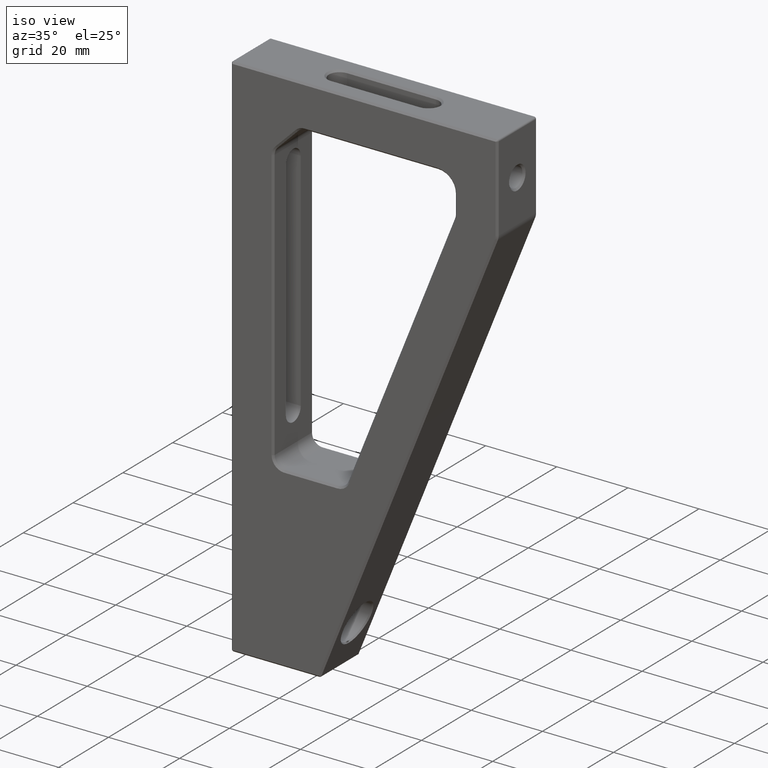
[diagram: clean part render]
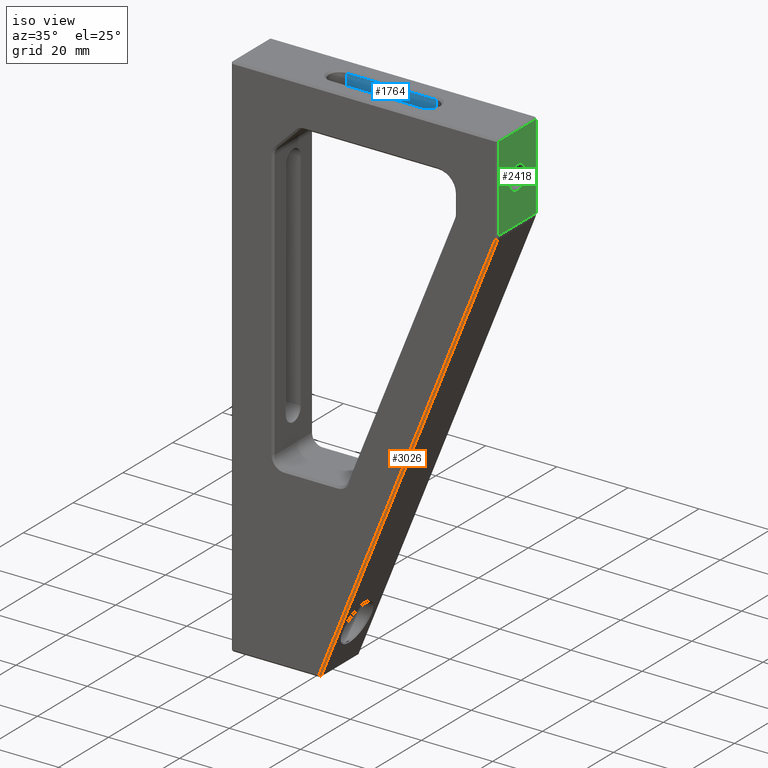
[diagram: same view with three faces highlighted in distinct colors, each labeled with its STEP entity id]
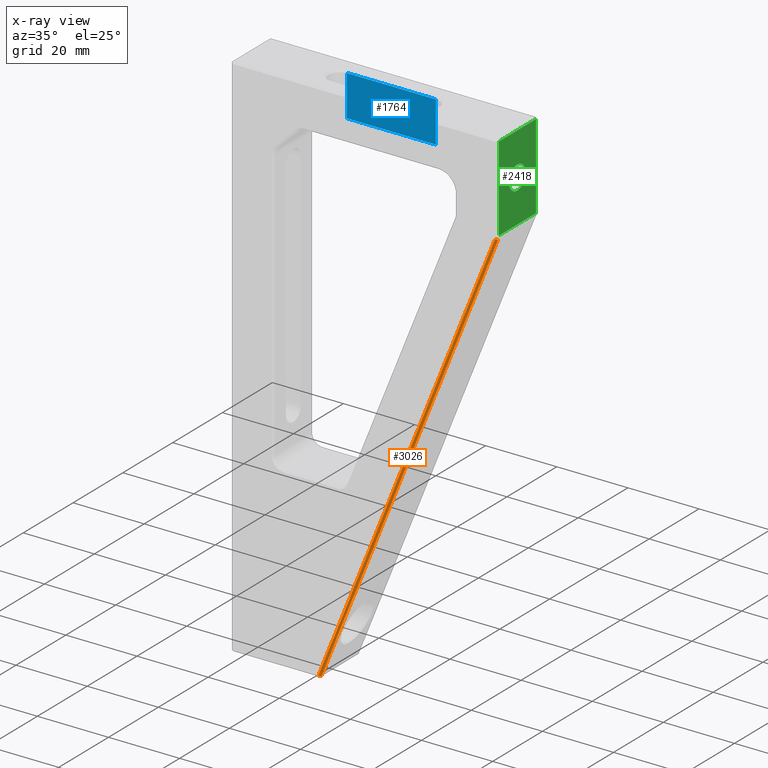
[diagram: x-ray of the same camera — body ghosted, the three highlighted faces saturated]
A machine part, iso view with three faces highlighted in distinct colors.
The next image is the same camera in x-ray (body ghosted, the three faces saturated) — at least one of them is partly hidden behind the body in this view.
Their STEP definitions:

[orange] entity #3026 — the highlighted planar face has unit normal (-0.6565, 0.7071, 0.2626).
#43 = CARTESIAN_POINT ( 'NONE',  ( 34.19837979459430244, -9.583758937690465274, 199.4635751816394986 ) ) ;
#121 = CARTESIAN_POINT ( 'NONE',  ( 33.73414144912245405, -10.08375893772192988, 199.6492705198282067 ) ) ;
#156 = VECTOR ( 'NONE', #933, 1000.000000000000114 ) ;
#159 = EDGE_CURVE ( 'NONE', #1185, #1674, #3085, .T. ) ;
#410 = PLANE ( 'NONE',  #2543 ) ;
#569 = DIRECTION ( 'NONE',  ( -0.6565321642986167161, -0.7071067811865509034, 0.2626128657194261029 ) ) ;
#663 = VECTOR ( 'NONE', #1889, 1000.000000000000114 ) ;
#871 = CARTESIAN_POINT ( 'NONE',  ( -15.46132841333233543, -9.583758937690465274, 75.31430466182291639 ) ) ;
#874 = CARTESIAN_POINT ( 'NONE',  ( 11.53491827304757145, -10.08375893769047948, 144.1512125795563293 ) ) ;
#933 = DIRECTION ( 'NONE',  ( 0.3713906763541038880, 0.000000000000000000, 0.9284766908852593037 ) ) ;
#1142 = DIRECTION ( 'NONE',  ( -0.7328281087929350290, -0.6804138174397769134, 0.000000000000000000 ) ) ;
#1185 = VERTEX_POINT ( 'NONE', #2910 ) ;
#1411 = LINE ( 'NONE', #2198, #156 ) ;
#1481 = EDGE_CURVE ( 'NONE', #2593, #1185, #1840, .T. ) ;
#1582 = VECTOR ( 'NONE', #569, 1000.000000000000114 ) ;
#1674 = VERTEX_POINT ( 'NONE', #121 ) ;
#1709 = ORIENTED_EDGE ( 'NONE', *, *, #159, .F. ) ;
#1738 = ORIENTED_EDGE ( 'NONE', *, *, #1944, .F. ) ;
#1818 = EDGE_CURVE ( 'NONE', #2593, #3219, #1411, .T. ) ;
#1840 = LINE ( 'NONE', #871, #1582 ) ;
#1889 = DIRECTION ( 'NONE',  ( 0.3713906763541037215, -6.486748999136609268E-17, 0.9284766908852593037 ) ) ;
#1923 = CARTESIAN_POINT ( 'NONE',  ( 33.73414144915165025, -10.08375893769048481, 199.6492705198165254 ) ) ;
#1943 = FACE_OUTER_BOUND ( 'NONE', #2404, .T. ) ;
#1944 = EDGE_CURVE ( 'NONE', #1674, #3219, #2899, .T. ) ;
#1974 = ORIENTED_EDGE ( 'NONE', *, *, #1481, .F. ) ;
#2198 = CARTESIAN_POINT ( 'NONE',  ( -15.58705027806151655, -9.583758937690459945, 74.99999999999998579 ) ) ;
#2404 = EDGE_LOOP ( 'NONE', ( #3087, #1738, #1709, #1974 ) ) ;
#2509 = CARTESIAN_POINT ( 'NONE',  ( -15.46132841333233898, -9.583758937690461721, 75.31430466182293060 ) ) ;
#2543 = AXIS2_PLACEMENT_3D ( 'NONE', #874, #3177, #1142 ) ;
#2593 = VERTEX_POINT ( 'NONE', #2509 ) ;
#2615 = CARTESIAN_POINT ( 'NONE',  ( -15.92556675877497518, -10.08375893769047593, 75.49999999999995737 ) ) ;
#2818 = VECTOR ( 'NONE', #2919, 1000.000000000000114 ) ;
#2899 = LINE ( 'NONE', #1923, #2818 ) ;
#2910 = CARTESIAN_POINT ( 'NONE',  ( -15.92556675877765393, -10.08375893769047771, 75.49999999999998579 ) ) ;
#2919 = DIRECTION ( 'NONE',  ( 0.6565321642986210460, 0.7071067811865532349, -0.2626128657194091165 ) ) ;
#3026 = ADVANCED_FACE ( 'NONE', ( #1943 ), #410, .F. ) ;
#3085 = LINE ( 'NONE', #2615, #663 ) ;
#3087 = ORIENTED_EDGE ( 'NONE', *, *, #1818, .T. ) ;
#3177 = DIRECTION ( 'NONE',  ( -0.6565321642986174933, 0.7071067811865424657, 0.2626128657194470306 ) ) ;
#3219 = VERTEX_POINT ( 'NONE', #43 ) ;

[blue] entity #1764 — the highlighted planar face has unit normal (-0, 1, 0).
#37 = LINE ( 'NONE', #1814, #3006 ) ;
#57 = FACE_OUTER_BOUND ( 'NONE', #2285, .T. ) ;
#264 = LINE ( 'NONE', #776, #3000 ) ;
#296 = DIRECTION ( 'NONE',  ( -0.000000000000000000, -0.000000000000000000, -1.000000000000000000 ) ) ;
#359 = EDGE_CURVE ( 'NONE', #2829, #2154, #264, .T. ) ;
#645 = AXIS2_PLACEMENT_3D ( 'NONE', #2324, #2810, #2580 ) ;
#776 = CARTESIAN_POINT ( 'NONE',  ( -15.58705027806149523, 0.9162410623095279538, 224.4999999999999716 ) ) ;
#1267 = EDGE_CURVE ( 'NONE', #3008, #2154, #2784, .T. ) ;
#1400 = CARTESIAN_POINT ( 'NONE',  ( 9.412949721938485226, 0.9162410622810179817, 224.4999999999462261 ) ) ;
#1487 = LINE ( 'NONE', #2966, #2097 ) ;
#1616 = VERTEX_POINT ( 'NONE', #1847 ) ;
#1707 = DIRECTION ( 'NONE',  ( 1.000000000000000000, 0.000000000000000000, -0.000000000000000000 ) ) ;
#1764 = ADVANCED_FACE ( 'NONE', ( #57 ), #2082, .F. ) ;
#1814 = CARTESIAN_POINT ( 'NONE',  ( 9.412949721938485226, 0.9162410623095302853, 74.99899999999998101 ) ) ;
#1847 = CARTESIAN_POINT ( 'NONE',  ( 9.412949721938485226, 0.9162410623095279538, 212.9999999999999716 ) ) ;
#2026 = CARTESIAN_POINT ( 'NONE',  ( -15.58705027806149523, 0.9162410623095255113, 74.99899999999998101 ) ) ;
#2063 = DIRECTION ( 'NONE',  ( -1.000000000000000000, -9.540979117872201128E-17, 9.540979117872451345E-17 ) ) ;
#2073 = CARTESIAN_POINT ( 'NONE',  ( -15.58705027806149523, 0.9162410623095255113, 212.9999999999999716 ) ) ;
#2082 = PLANE ( 'NONE',  #645 ) ;
#2097 = VECTOR ( 'NONE', #1707, 1000.000000000000000 ) ;
#2154 = VERTEX_POINT ( 'NONE', #2778 ) ;
#2213 = ORIENTED_EDGE ( 'NONE', *, *, #1267, .F. ) ;
#2277 = EDGE_CURVE ( 'NONE', #2829, #1616, #37, .T. ) ;
#2279 = ORIENTED_EDGE ( 'NONE', *, *, #2277, .F. ) ;
#2285 = EDGE_LOOP ( 'NONE', ( #2609, #2213, #2667, #2279 ) ) ;
#2324 = CARTESIAN_POINT ( 'NONE',  ( -15.58705027806149523, 0.9162410623095255113, 74.99899999999998101 ) ) ;
#2580 = DIRECTION ( 'NONE',  ( -1.000000000000000000, -1.908195823574489776E-16, 0.000000000000000000 ) ) ;
#2609 = ORIENTED_EDGE ( 'NONE', *, *, #359, .T. ) ;
#2633 = EDGE_CURVE ( 'NONE', #3008, #1616, #1487, .T. ) ;
#2667 = ORIENTED_EDGE ( 'NONE', *, *, #2633, .T. ) ;
#2778 = CARTESIAN_POINT ( 'NONE',  ( -15.58705027806149523, 0.9162410623009052957, 224.4999999999462261 ) ) ;
#2784 = LINE ( 'NONE', #2026, #2848 ) ;
#2810 = DIRECTION ( 'NONE',  ( -1.908195823574489776E-16, 1.000000000000000000, 0.000000000000000000 ) ) ;
#2829 = VERTEX_POINT ( 'NONE', #1400 ) ;
#2848 = VECTOR ( 'NONE', #3227, 1000.000000000000000 ) ;
#2966 = CARTESIAN_POINT ( 'NONE',  ( -21.08705027806149701, 0.9162410623095255113, 212.9999999999999716 ) ) ;
#3000 = VECTOR ( 'NONE', #2063, 1000.000000000000000 ) ;
#3006 = VECTOR ( 'NONE', #296, 1000.000000000000000 ) ;
#3008 = VERTEX_POINT ( 'NONE', #2073 ) ;
#3227 = DIRECTION ( 'NONE',  ( 0.000000000000000000, 0.000000000000000000, 1.000000000000000000 ) ) ;

[green] entity #2418 — the highlighted planar face has unit normal (-1, 0, 0).
#24 = VERTEX_POINT ( 'NONE', #1995 ) ;
#71 = ORIENTED_EDGE ( 'NONE', *, *, #2104, .F. ) ;
#113 = EDGE_CURVE ( 'NONE', #1168, #24, #369, .T. ) ;
#189 = PLANE ( 'NONE',  #1328 ) ;
#267 = AXIS2_PLACEMENT_3D ( 'NONE', #447, #2413, #2695 ) ;
#327 = ORIENTED_EDGE ( 'NONE', *, *, #1595, .F. ) ;
#369 = LINE ( 'NONE', #581, #2750 ) ;
#447 = CARTESIAN_POINT ( 'NONE',  ( 34.41294972194555868, -2.083758937690479929, 212.5000000000000000 ) ) ;
#526 = DIRECTION ( 'NONE',  ( 0.000000000000000000, 1.000000000000000000, -0.000000000000000000 ) ) ;
#551 = CARTESIAN_POINT ( 'NONE',  ( 34.41294972193851009, 5.416241062309553378, 224.5000000000000000 ) ) ;
#581 = CARTESIAN_POINT ( 'NONE',  ( 34.41294972193849588, 5.916241062309521404, 200.5777472107017161 ) ) ;
#686 = DIRECTION ( 'NONE',  ( 1.850371707708594316E-16, 0.000000000000000000, 1.000000000000000000 ) ) ;
#850 = VECTOR ( 'NONE', #1628, 1000.000000000000000 ) ;
#878 = ORIENTED_EDGE ( 'NONE', *, *, #113, .F. ) ;
#880 = FACE_BOUND ( 'NONE', #2041, .T. ) ;
#911 = CARTESIAN_POINT ( 'NONE',  ( 34.41294972194594237, 5.416241062330086287, 200.5777472107016877 ) ) ;
#1029 = LINE ( 'NONE', #3220, #3254 ) ;
#1168 = VERTEX_POINT ( 'NONE', #911 ) ;
#1183 = EDGE_CURVE ( 'NONE', #1604, #1604, #2683, .T. ) ;
#1323 = CARTESIAN_POINT ( 'NONE',  ( 34.41294972193850299, -9.583758937690465274, 224.4999999999999716 ) ) ;
#1328 = AXIS2_PLACEMENT_3D ( 'NONE', #3133, #3149, #686 ) ;
#1506 = EDGE_LOOP ( 'NONE', ( #327, #878, #71, #2259 ) ) ;
#1595 = EDGE_CURVE ( 'NONE', #24, #1627, #2619, .T. ) ;
#1604 = VERTEX_POINT ( 'NONE', #2183 ) ;
#1627 = VERTEX_POINT ( 'NONE', #1323 ) ;
#1628 = DIRECTION ( 'NONE',  ( 1.850371707708594316E-16, 0.000000000000000000, 1.000000000000000000 ) ) ;
#1995 = CARTESIAN_POINT ( 'NONE',  ( 34.41294972193849588, -9.583758937690465274, 200.5777472107017161 ) ) ;
#2041 = EDGE_LOOP ( 'NONE', ( #2888 ) ) ;
#2104 = EDGE_CURVE ( 'NONE', #3073, #1168, #1029, .T. ) ;
#2183 = CARTESIAN_POINT ( 'NONE',  ( 34.41294972194555868, -2.083758937690479929, 209.2000000000325599 ) ) ;
#2259 = ORIENTED_EDGE ( 'NONE', *, *, #2681, .F. ) ;
#2377 = CARTESIAN_POINT ( 'NONE',  ( 34.41294972193847457, -9.583758937690465274, 74.99999999999998579 ) ) ;
#2413 = DIRECTION ( 'NONE',  ( 1.000000000000000000, 0.000000000000000000, 0.000000000000000000 ) ) ;
#2417 = FACE_OUTER_BOUND ( 'NONE', #1506, .T. ) ;
#2418 = ADVANCED_FACE ( 'NONE', ( #2417, #880 ), #189, .F. ) ;
#2619 = LINE ( 'NONE', #2377, #850 ) ;
#2651 = DIRECTION ( 'NONE',  ( -0.000000000000000000, -1.000000000000000000, 0.000000000000000000 ) ) ;
#2681 = EDGE_CURVE ( 'NONE', #1627, #3073, #3141, .T. ) ;
#2683 = CIRCLE ( 'NONE', #267, 3.299999999967440090 ) ;
#2695 = DIRECTION ( 'NONE',  ( 0.000000000000000000, 0.000000000000000000, -1.000000000000000000 ) ) ;
#2750 = VECTOR ( 'NONE', #2651, 1000.000000000000000 ) ;
#2773 = CARTESIAN_POINT ( 'NONE',  ( 34.41294972193850299, 5.916241062309521404, 224.4999999999999716 ) ) ;
#2888 = ORIENTED_EDGE ( 'NONE', *, *, #1183, .F. ) ;
#2971 = DIRECTION ( 'NONE',  ( -9.251858538542971581E-17, -9.251858538542971581E-17, -1.000000000000000000 ) ) ;
#2989 = VECTOR ( 'NONE', #526, 1000.000000000000000 ) ;
#3073 = VERTEX_POINT ( 'NONE', #551 ) ;
#3133 = CARTESIAN_POINT ( 'NONE',  ( 34.41294972193847457, 5.916241062309521404, 74.99999999999998579 ) ) ;
#3141 = LINE ( 'NONE', #2773, #2989 ) ;
#3149 = DIRECTION ( 'NONE',  ( -1.000000000000000000, 0.000000000000000000, 1.850371707708594316E-16 ) ) ;
#3220 = CARTESIAN_POINT ( 'NONE',  ( 34.41294972193849588, 5.416241062309547161, 149.9999999999999716 ) ) ;
#3254 = VECTOR ( 'NONE', #2971, 1000.000000000000000 ) ;